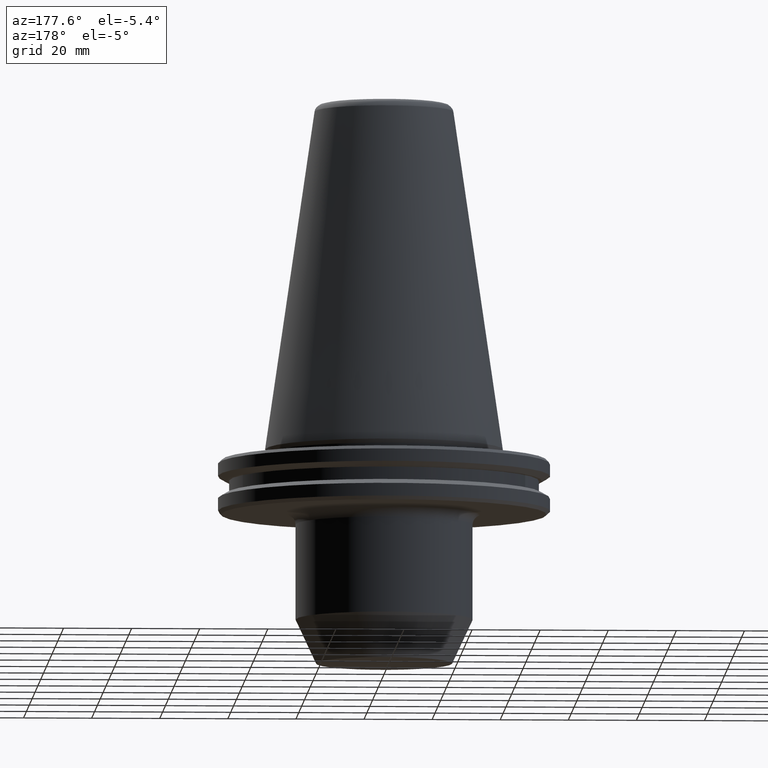
[diagram: clean part render]
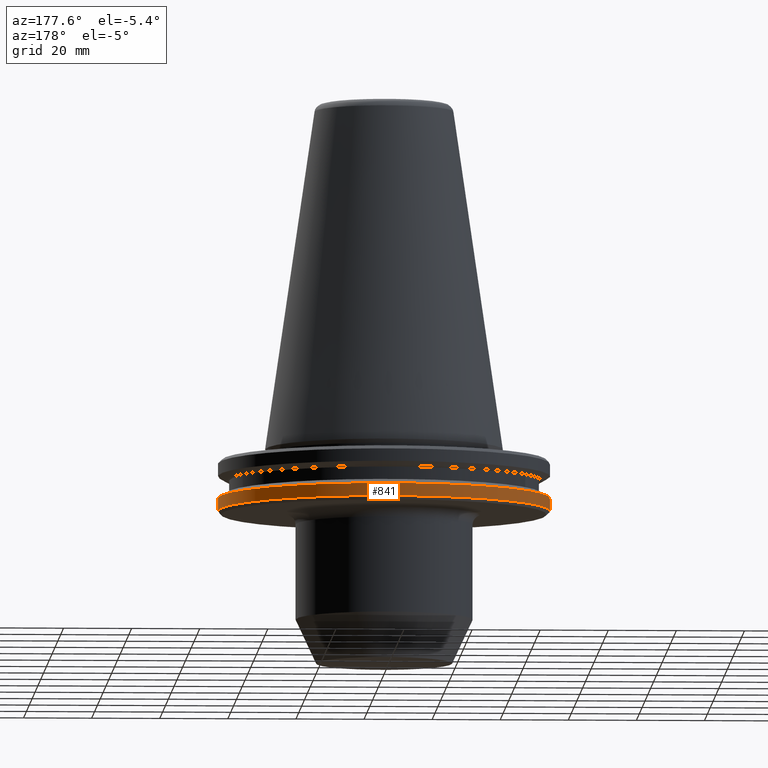
[diagram: same view with one face highlighted and labeled with its STEP entity id]
A machine part, auxiliary view. The second image highlights one B-rep face of the part: STEP entity #841.
In plain terms, the highlighted cylindrical surface (partial cylindrical patch) has radius 48.75 mm, axis along (-0, -0, 1).
Its self-contained STEP definition (entity closure, byte-faithful):
#1 = VECTOR ( 'NONE', #384, 1000.000000000000000 ) ;
#34 = EDGE_CURVE ( 'NONE', #436, #942, #210, .T. ) ;
#72 = AXIS2_PLACEMENT_3D ( 'NONE', #410, #948, #404 ) ;
#97 = CIRCLE ( 'NONE', #576, 48.75000000000018500 ) ;
#120 = ORIENTED_EDGE ( 'NONE', *, *, #201, .F. ) ;
#157 = DIRECTION ( 'NONE',  ( -0.0000000000000000000, -0.0000000000000000000, 1.000000000000000000 ) ) ;
#163 = ORIENTED_EDGE ( 'NONE', *, *, #689, .F. ) ;
#164 = CARTESIAN_POINT ( 'NONE',  ( -48.75000000000018500, 5.970153145843369200E-015, 101.7499999999999600 ) ) ;
#174 = VECTOR ( 'NONE', #366, 1000.000000000000000 ) ;
#201 = EDGE_CURVE ( 'NONE', #998, #315, #371, .T. ) ;
#210 = LINE ( 'NONE', #164, #1 ) ;
#237 = CARTESIAN_POINT ( 'NONE',  ( 48.75000000000018500, 0.0000000000000000000, -18.09999999999950400 ) ) ;
#244 = CIRCLE ( 'NONE', #587, 48.75000000000018500 ) ;
#308 = DIRECTION ( 'NONE',  ( -0.0000000000000000000, -0.0000000000000000000, 1.000000000000000000 ) ) ;
#315 = VERTEX_POINT ( 'NONE', #626 ) ;
#326 = EDGE_LOOP ( 'NONE', ( #617, #741, #163, #120 ) ) ;
#354 = FACE_OUTER_BOUND ( 'NONE', #326, .T. ) ;
#366 = DIRECTION ( 'NONE',  ( -0.0000000000000000000, -0.0000000000000000000, 1.000000000000000000 ) ) ;
#371 = LINE ( 'NONE', #503, #174 ) ;
#384 = DIRECTION ( 'NONE',  ( -0.0000000000000000000, -0.0000000000000000000, 1.000000000000000000 ) ) ;
#404 = DIRECTION ( 'NONE',  ( 1.000000000000000000, 0.0000000000000000000, 0.0000000000000000000 ) ) ;
#410 = CARTESIAN_POINT ( 'NONE',  ( 0.0000000000000000000, 0.0000000000000000000, 101.7499999999999600 ) ) ;
#435 = CARTESIAN_POINT ( 'NONE',  ( -48.75000000000018500, 5.970153145843369200E-015, -14.34759526419204800 ) ) ;
#436 = VERTEX_POINT ( 'NONE', #674 ) ;
#503 = CARTESIAN_POINT ( 'NONE',  ( 48.75000000000018500, 0.0000000000000000000, 101.7499999999999600 ) ) ;
#576 = AXIS2_PLACEMENT_3D ( 'NONE', #709, #157, #628 ) ;
#587 = AXIS2_PLACEMENT_3D ( 'NONE', #855, #308, #781 ) ;
#617 = ORIENTED_EDGE ( 'NONE', *, *, #773, .T. ) ;
#626 = CARTESIAN_POINT ( 'NONE',  ( 48.75000000000018500, 0.0000000000000000000, -14.34759526419204800 ) ) ;
#628 = DIRECTION ( 'NONE',  ( 1.000000000000000000, 0.0000000000000000000, 0.0000000000000000000 ) ) ;
#674 = CARTESIAN_POINT ( 'NONE',  ( -48.75000000000018500, 5.970153145843369200E-015, -18.09999999999950400 ) ) ;
#689 = EDGE_CURVE ( 'NONE', #315, #942, #97, .T. ) ;
#709 = CARTESIAN_POINT ( 'NONE',  ( 0.0000000000000000000, 0.0000000000000000000, -14.34759526419204800 ) ) ;
#732 = CYLINDRICAL_SURFACE ( 'NONE', #72, 48.75000000000018500 ) ;
#741 = ORIENTED_EDGE ( 'NONE', *, *, #34, .T. ) ;
#773 = EDGE_CURVE ( 'NONE', #998, #436, #244, .T. ) ;
#781 = DIRECTION ( 'NONE',  ( 1.000000000000000000, 0.0000000000000000000, 0.0000000000000000000 ) ) ;
#841 = ADVANCED_FACE ( 'NONE', ( #354 ), #732, .T. ) ;
#855 = CARTESIAN_POINT ( 'NONE',  ( 0.0000000000000000000, 0.0000000000000000000, -18.09999999999950400 ) ) ;
#942 = VERTEX_POINT ( 'NONE', #435 ) ;
#948 = DIRECTION ( 'NONE',  ( -0.0000000000000000000, -0.0000000000000000000, 1.000000000000000000 ) ) ;
#998 = VERTEX_POINT ( 'NONE', #237 ) ;